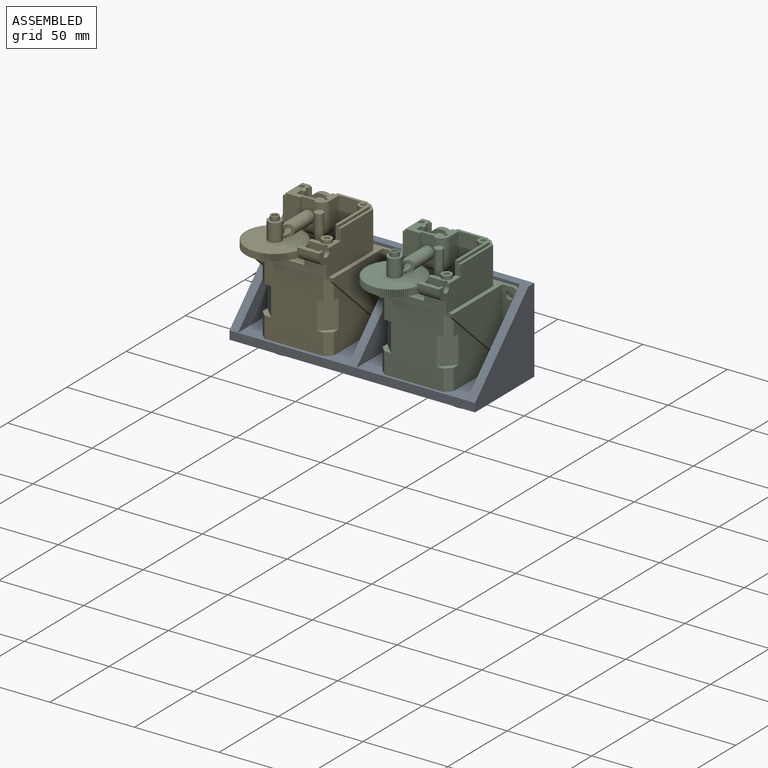
[diagram: assembled view]
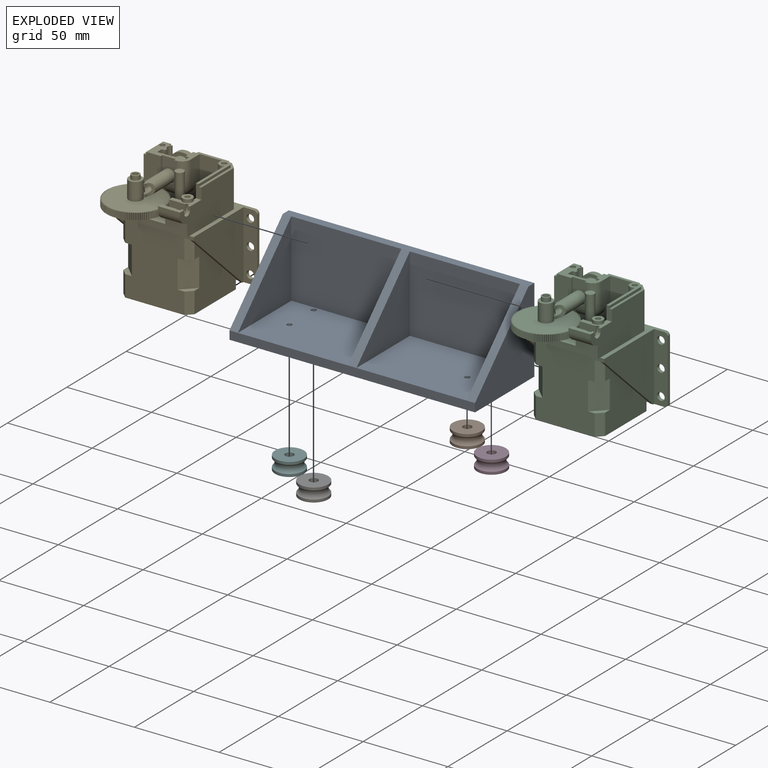
[diagram: exploded view]
GUIDED TOUR — MATED ASSEMBLY WITH SUBASSEMBLIES (Onshape document d7634deb3688b2f1b985ae3a, AutoMate assembly d7634deb3688b2f1b985ae3a_b9d960c2a4b070388d942541_c67b8e5b1b99cf756e7b9374_default)

This assembly has 17 component occurrences arranged in 7 top-level units: 5 individual components plus 2 subassemblies (S0, S1). The tour has two levels: first the top level, where each subassembly is treated as one rigid unit; then each subassembly is toured internally in its own section (nesting deeper than one subassembly level is flattened into its subassembly's section).

Components are labeled P0..P16 across the whole record; subassembly units are labeled S0..S1. A mate is a constraint between two units; its type names the relative motion it leaves free:
  CYLINDRICAL — leaves both rotation about and translation along the listed axis free,
  PARALLEL — keeps the two listed directions parallel,
  PLANAR — leaves sliding in the plane through the listed point (normal = the listed direction) and rotation about that normal free.
Axis/direction vectors are unit vectors and 'through' points are millimeter coordinates, both in the assembly's world frame.

TOP-LEVEL MATES (between units; each subassembly's internal mates are listed in its own section)
  1. CYLINDRICAL "Cylindrical 1": P1 <-> P0, axis (0.000, 0.000, 1.000) through (79.17, -160.97, 48.80) mm
  2. CYLINDRICAL "Cylindrical 4": P16 <-> P0, axis (0.000, 0.000, 1.000) through (-25.83, -140.51, 48.80) mm
  3. PLANAR "Planar 3": P1 <-> P0, direction (0.000, 0.000, 1.000) through (79.17, -160.97, 48.80) mm
  4. CYLINDRICAL "Cylindrical 3": P11 <-> P0, axis (0.000, 0.000, 1.000) through (-25.83, -160.97, 43.92) mm
  5. CYLINDRICAL "Cylindrical 2": P3 <-> P0, axis (0.000, 0.000, 1.000) through (79.17, -140.51, 48.80) mm
  6. PLANAR "Planar 2": P11 <-> P0, direction (0.000, 0.000, 1.000) through (-25.83, -160.97, 48.80) mm
  7. PLANAR "Planar 4": P0 <-> P3, direction (0.000, 0.000, -1.000) through (26.67, -158.09, 48.80) mm
  8. PLANAR "Planar 1": P16 <-> P0, direction (0.000, 0.000, 1.000) through (-25.83, -140.51, 48.80) mm

TOP-LEVEL ASSEMBLY ORDER
  1. P0 — the base component [order heuristic]
  2. P1 — core [order heuristic]
  3. P3 — core [order heuristic]
  4. P11 — core [order heuristic]
  5. P16 — core [order heuristic]
  6. S1 [order verified]
  7. S0 [order verified]
Order-tag legend:
  [order verified] — this step's position reverses a verified removal order: the component was checked to insert without passing through the ones already placed.
  [order heuristic] — the first 5 components form the assembly's core: parts whose collision-free extraction could not be verified, listed in mate-graph order.

Of the 17 component occurrences, 17 carry the full construction recipe — the FeatureScript program that regenerates the part's solid from scratch; the rest are supplied as boundary geometry only. Each toured unit is shown spotlighted twice — assembled, then exploded with a leader line back to its socket (green = recipe-attached component, orange = geometry-only, blue = subassembly unit; the rest desaturated gray).
NOTE — document 4 of 4 of this assembly tour. The two overview renders and the header above are repeated from document 1; the component sections below continue where the previous document stopped.
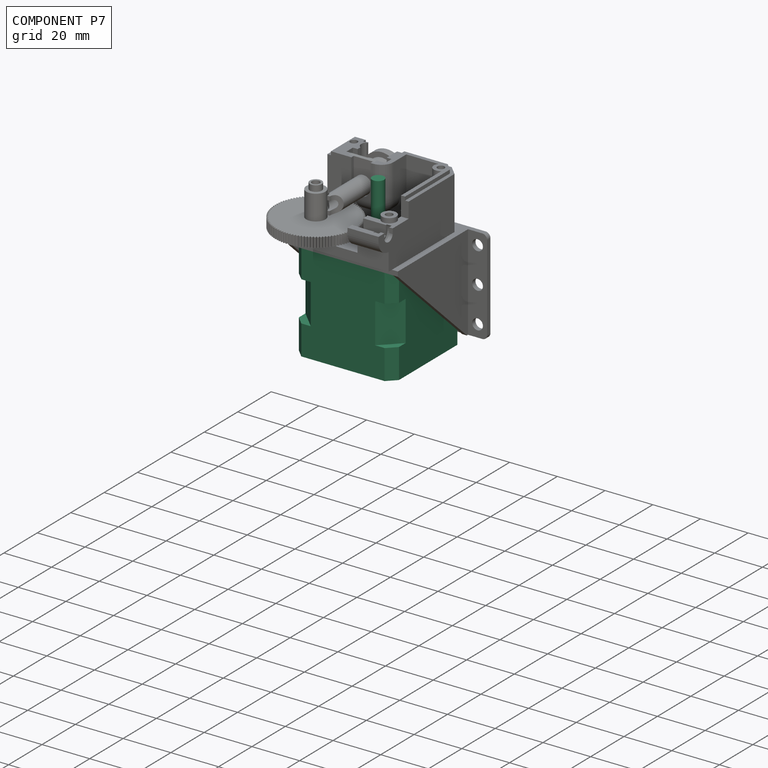
[diagram: component P7 — assembled]
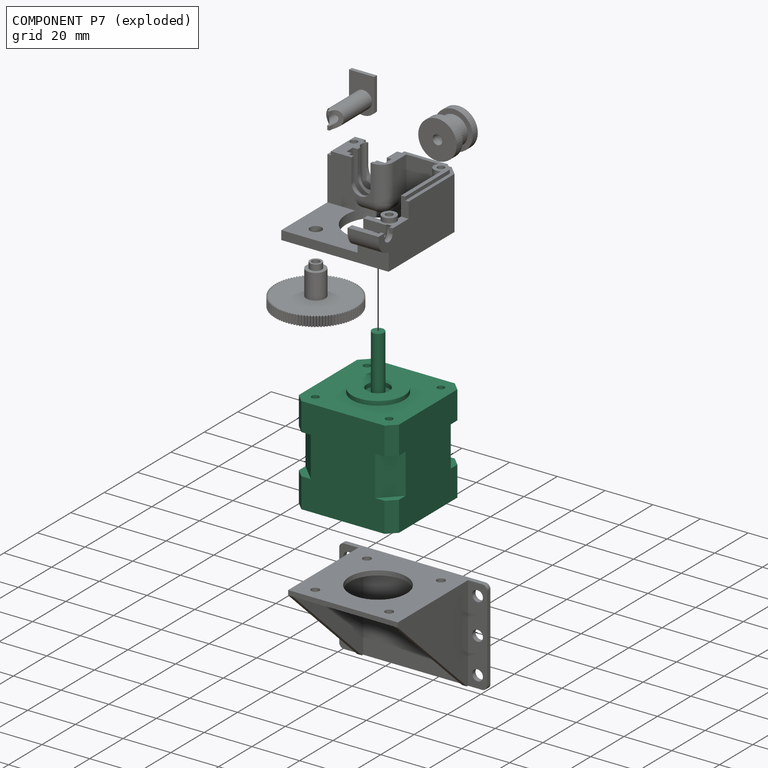
[diagram: component P7 — exploded]
COMPONENT P7 — recipe-attached (CADFS 00519375, mesh-verified: the recipe's output STEP matches this component's geometry to below the mesh-comparison resolution (tessellation chordal tolerance ~0.131 mm)).
Held by: CYLINDRICAL mate "Cylindrical 1" to P5; PARALLEL mate "Parallel 5" to P5; PLANAR mate "Planar 1" to P5; PARALLEL mate "Parallel 2" to P5; PARALLEL mate "Parallel 1" to P5; PARALLEL mate "Parallel 1" to P5; PARALLEL mate "Parallel 5" to P5; PARALLEL mate "Parallel 2" to P5; CYLINDRICAL mate "Cylindrical 1" to P5; PLANAR mate "Planar 1" to P5.
Construction recipe (FeatureScript — the CAD program that rebuilds this solid; sketch coordinates are in the units given by the * unit suffixes, e.g. mm):

FeatureScript 1511;
import(path : "onshape/std/geometry.fs", version : "1511.0");
import(path : "onshape/std/common.fs", version : "1511.0");
const mm = millimeter;
const VERTEX = EntityType.VERTEX;
const EDGE = EntityType.EDGE;
const FACE = EntityType.FACE;
const BODY = EntityType.BODY;
function v(x, y){return vector(x, y);}
function OD(order){return orderDisambiguation(order);}
function OSD(set){return originalSetDisambiguation(set);}
function TD(topology){return topologyDisambiguation(topology);}
function TDD(query){return trueDependencyDisambiguation(query);}
function sQuery(a, b, c) {return sketchEntityQuery(a, b, c);}

annotation { "Feature Type Name" : "Feature", "Feature Type Description" : "" }
export const myFeature = defineFeature(function(context is Context, id is Id, definition is map)
    precondition{}
    {
        {
            var Q0;
            Q0=qCreatedBy(makeId("Top.planeOp"),FACE);
            var sketch = newSketch(context, id + "F0", { "sketchPlane" : qUnion([Q0])});
            skLineSegment(sketch, "E0.bottom", {"start": v(-17.46, 21) * mm, "end": v(17.46, 21) * mm});
            skLineSegment(sketch, "E0.top", {"start": v(-17.46, -21) * mm, "end": v(17.46, -21) * mm});
            skLineSegment(sketch, "E0.left", {"start": v(-21, 17.46) * mm, "end": v(-21, -17.46) * mm});
            skLineSegment(sketch, "E0.right", {"start": v(21, 17.46) * mm, "end": v(21, -17.46) * mm});
            skLineSegment(sketch, "E1", {"start": v(-21, -17.46) * mm, "end": v(-17.46, -21) * mm});
            skLineSegment(sketch, "E2", {"start": v(21, -17.46) * mm, "end": v(17.46, -21) * mm});
            skLineSegment(sketch, "E3", {"start": v(-17.46, 21) * mm, "end": v(-21, 17.46) * mm});
            skLineSegment(sketch, "E4", {"start": v(17.46, 21) * mm, "end": v(21, 17.46) * mm});
            skSolve(sketch);
        }
        {
            var Q0;
            Q0=makeQuery(id+"F0.imprint","IMPRINT",FACE,{"disambiguationData":[TD([[makeQuery(id+"F0.imprint","IMPRINT",EDGE,{"derivedFrom":sQuery(id+"F0.wireOp",EDGE,"E0.bottom")}),-1.0]])]});
            extrude(context, id + "F1", {"entities" : qUnion([Q0]), "depth" : 12.5 * mm, "offsetDistance" : 25 * mm});
        }
        {
            var Q0;
            Q0=makeQuery(id+"F1.opExtrude","CAP_FACE",FACE,{"disambiguationData":[OSD([sQuery(id+"F0.wireOp",EDGE,"E0.bottom"),sQuery(id+"F0.wireOp",EDGE,"E0.top"),sQuery(id+"F0.wireOp",EDGE,"E0.left"),sQuery(id+"F0.wireOp",EDGE,"E0.right"),sQuery(id+"F0.wireOp",EDGE,"E1"),sQuery(id+"F0.wireOp",EDGE,"E2"),sQuery(id+"F0.wireOp",EDGE,"E3"),sQuery(id+"F0.wireOp",EDGE,"E4")])],"isStart":false});
            var sketch = newSketch(context, id + "F2", { "sketchPlane" : qUnion([Q0])});
            skLineSegment(sketch, "E5", {"start": v(-13.5, 21) * mm, "end": v(13.5, 21) * mm});
            skLineSegment(sketch, "E6", {"start": v(13.5, 21) * mm, "end": v(21, 13.5) * mm});
            skLineSegment(sketch, "E7", {"start": v(21, 13.5) * mm, "end": v(21, -13.5) * mm});
            skLineSegment(sketch, "E8", {"start": v(21, -13.5) * mm, "end": v(13.5, -21) * mm});
            skLineSegment(sketch, "E9", {"start": v(13.5, -21) * mm, "end": v(-13.5, -21) * mm});
            skLineSegment(sketch, "E10", {"start": v(-13.5, -21) * mm, "end": v(-21, -13.5) * mm});
            skLineSegment(sketch, "E11", {"start": v(-21, -13.5) * mm, "end": v(-21, 13.5) * mm});
            skLineSegment(sketch, "E12", {"start": v(-21, 13.5) * mm, "end": v(-13.5, 21) * mm});
            skSolve(sketch);
        }
        {
            var Q0;
            Q0 = qSketchRegion(id + "F2", true);
            extrude(context, id + "F3", {"entities" : qUnion([Q0]), "operationType" : NewBodyOperationType.ADD, "depth" : 16.75 * mm, "offsetDistance" : 25 * mm});
        }
        {
            var Q0;
            Q0 = qSketchRegion(id + "F0", true);
            extrude(context, id + "F4", {"entities" : qUnion([Q0]), "operationType" : NewBodyOperationType.ADD, "depth" : 41 * mm, "offsetDistance" : 25 * mm, "hasSecondDirection" : true, "secondDirectionOppositeDirection" : false, "secondDirectionDepth" : 29.25 * mm});
        }
        {
            var Q0;
            Q0=makeQuery(id+"F4.opExtrude","CAP_FACE",FACE,{"disambiguationData":[OSD([sQuery(id+"F0.wireOp",EDGE,"E0.bottom"),sQuery(id+"F0.wireOp",EDGE,"E0.top"),sQuery(id+"F0.wireOp",EDGE,"E0.left"),sQuery(id+"F0.wireOp",EDGE,"E0.right"),sQuery(id+"F0.wireOp",EDGE,"E1"),sQuery(id+"F0.wireOp",EDGE,"E2"),sQuery(id+"F0.wireOp",EDGE,"E3"),sQuery(id+"F0.wireOp",EDGE,"E4")])],"isStart":false});
            var sketch = newSketch(context, id + "F5", { "sketchPlane" : qUnion([Q0])});
            skCircle(sketch, "E13", {"center": v(-15.5, 15.5) * mm, "radius": 1.5 * mm});
            skCircle(sketch, "E14", {"center": v(15.5, 15.5) * mm, "radius": 1.5 * mm});
            skCircle(sketch, "E15", {"center": v(15.5, -15.5) * mm, "radius": 1.5 * mm});
            skCircle(sketch, "E16", {"center": v(-15.5, -15.5) * mm, "radius": 1.5 * mm});
            skSolve(sketch);
        }
        {
            var Q0;
            Q0 = qSketchRegion(id + "F5", true);
            extrude(context, id + "F6", {"entities" : qUnion([Q0]), "operationType" : NewBodyOperationType.REMOVE, "oppositeDirection" : true, "depth" : 5.5 * mm, "offsetDistance" : 25 * mm});
        }
        {
            var Q0;
            Q0=makeQuery(id+"F4.opExtrude","CAP_FACE",FACE,{"disambiguationData":[OSD([sQuery(id+"F0.wireOp",EDGE,"E0.bottom"),sQuery(id+"F0.wireOp",EDGE,"E0.top"),sQuery(id+"F0.wireOp",EDGE,"E0.left"),sQuery(id+"F0.wireOp",EDGE,"E0.right"),sQuery(id+"F0.wireOp",EDGE,"E1"),sQuery(id+"F0.wireOp",EDGE,"E2"),sQuery(id+"F0.wireOp",EDGE,"E3"),sQuery(id+"F0.wireOp",EDGE,"E4")])],"isStart":false});
            var sketch = newSketch(context, id + "F7", { "sketchPlane" : qUnion([Q0])});
            skCircle(sketch, "E17", {"center": v(0, 0) * mm, "radius": 11 * mm});
            skCircle(sketch, "E18", {"center": v(0, 0) * mm, "radius": 4.75 * mm});
            skSolve(sketch);
        }
        {
            var Q0;
            Q0 = qSketchRegion(id + "F7", true);
            extrude(context, id + "F8", {"entities" : qUnion([Q0]), "operationType" : NewBodyOperationType.ADD, "depth" : 1.75 * mm, "offsetDistance" : 25 * mm});
        }
        {
            var Q0;
            Q0=makeQuery(id+"F8.boolean.opBoolean","SPLIT",FACE,{"disambiguationData":[TD([makeQuery(id+"F8.opExtrude","SWEPT_FACE",FACE,{"disambiguationData":[OSD([sQuery(id+"F7.wireOp",EDGE,"E18")])]})])],"derivedFrom":makeQuery(id+"F4.opExtrude","CAP_FACE",FACE,{"disambiguationData":[OSD([sQuery(id+"F0.wireOp",EDGE,"E0.bottom"),sQuery(id+"F0.wireOp",EDGE,"E0.top"),sQuery(id+"F0.wireOp",EDGE,"E0.left"),sQuery(id+"F0.wireOp",EDGE,"E0.right"),sQuery(id+"F0.wireOp",EDGE,"E1"),sQuery(id+"F0.wireOp",EDGE,"E2"),sQuery(id+"F0.wireOp",EDGE,"E3"),sQuery(id+"F0.wireOp",EDGE,"E4")])],"isStart":false})});
            var sketch = newSketch(context, id + "F9", { "sketchPlane" : qUnion([Q0])});
            skCircle(sketch, "E19", {"center": v(0, 0) * mm, "radius": 2.5 * mm});
            skSolve(sketch);
        }
        {
            var Q0;
            Q0 = qSketchRegion(id + "F9", true);
            extrude(context, id + "F10", {"entities" : qUnion([Q0]), "operationType" : NewBodyOperationType.ADD, "depth" : (21.5 + 1.75) * mm, "offsetDistance" : 25 * mm});
        }
    });
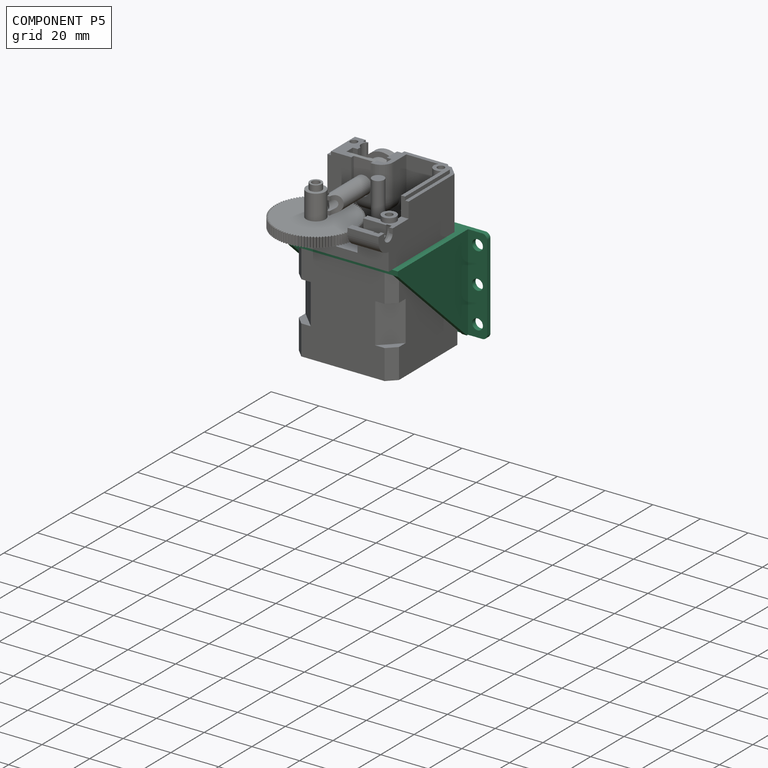
[diagram: component P5 — assembled]
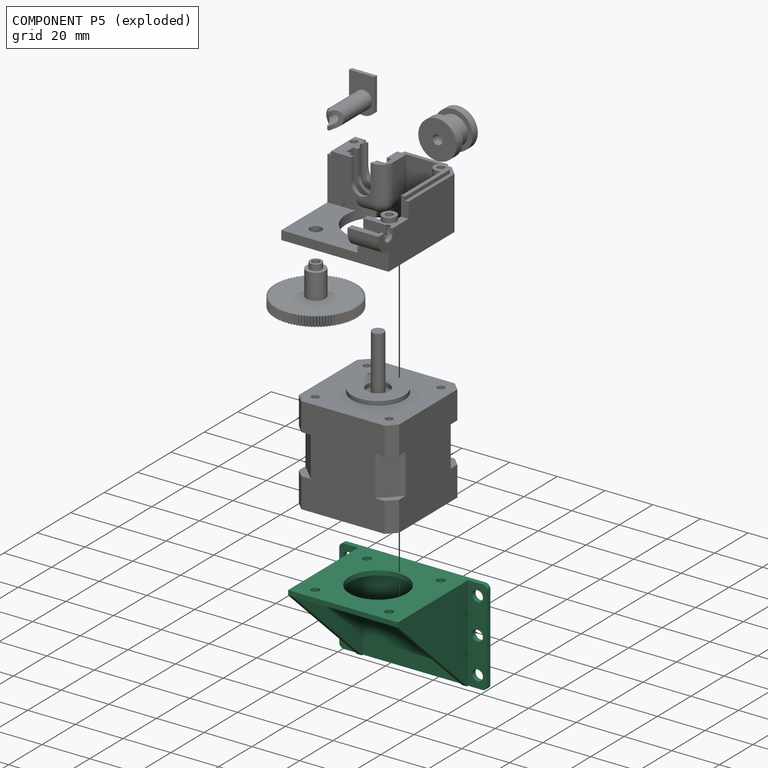
[diagram: component P5 — exploded]
COMPONENT P5 — recipe-attached (CADFS 00519376, mesh-verified: the recipe's output STEP matches this component's geometry to below the mesh-comparison resolution (tessellation chordal tolerance ~0.129 mm)).
Held by: PLANAR mate "Planar 2" to P12; CYLINDRICAL mate "Cylindrical 1" to P7; PARALLEL mate "Parallel 5" to P7; PLANAR mate "Planar 1" to P7; PARALLEL mate "Parallel 2" to P7; CYLINDRICAL mate "Cylindrical 2" to P12; PARALLEL mate "Parallel 1" to P7; PARALLEL mate "Parallel 3" to P12; PLANAR mate "Planar 2" to P12; PARALLEL mate "Parallel 1" to P7; PARALLEL mate "Parallel 5" to P7; PARALLEL mate "Parallel 3" to P12; PARALLEL mate "Parallel 2" to P7; CYLINDRICAL mate "Cylindrical 1" to P7; PLANAR mate "Planar 1" to P7; CYLINDRICAL mate "Cylindrical 2" to P12.
Construction recipe (FeatureScript — the CAD program that rebuilds this solid; sketch coordinates are in the units given by the * unit suffixes, e.g. mm):

FeatureScript 1511;
import(path : "onshape/std/geometry.fs", version : "1511.0");
import(path : "onshape/std/common.fs", version : "1511.0");
const mm = millimeter;
const VERTEX = EntityType.VERTEX;
const EDGE = EntityType.EDGE;
const FACE = EntityType.FACE;
const BODY = EntityType.BODY;
function v(x, y){return vector(x, y);}
function OD(order){return orderDisambiguation(order);}
function OSD(set){return originalSetDisambiguation(set);}
function TD(topology){return topologyDisambiguation(topology);}
function TDD(query){return trueDependencyDisambiguation(query);}
function sQuery(a, b, c) {return sketchEntityQuery(a, b, c);}

annotation { "Feature Type Name" : "Feature", "Feature Type Description" : "" }
export const myFeature = defineFeature(function(context is Context, id is Id, definition is map)
    precondition{}
    {
        {
            var Q0;
            Q0=qCreatedBy(makeId("Top.planeOp"),FACE);
            var sketch = newSketch(context, id + "F0", { "sketchPlane" : qUnion([Q0])});
            skLineSegment(sketch, "E0.bottom", {"start": v(2, 0) * mm, "end": v(60, 0) * mm});
            skLineSegment(sketch, "E0.top", {"start": v(2, 40) * mm, "end": v(60, 40) * mm});
            skLineSegment(sketch, "E0.left", {"start": v(0, 2) * mm, "end": v(0, 38) * mm});
            skLineSegment(sketch, "E0.right", {"start": v(62, 2) * mm, "end": v(62, 38) * mm});
            skCircle(sketch, "E1", {"center": v(4, 35) * mm, "radius": 2.25 * mm});
            skCircle(sketch, "E2", {"center": v(4, 20) * mm, "radius": 2.25 * mm});
            skCircle(sketch, "E3", {"center": v(4, 5) * mm, "radius": 2.25 * mm});
            skCircle(sketch, "E4", {"center": v(58, 35) * mm, "radius": 2.25 * mm});
            skCircle(sketch, "E5", {"center": v(58, 20) * mm, "radius": 2.25 * mm});
            skCircle(sketch, "E6", {"center": v(58, 5) * mm, "radius": 2.25 * mm});
            skPoint(sketch, "E7.visualSharp", {"position": v(0, 40) * mm});
            skArc(sketch, "E7.filletArc", {"start": v(2, 40) * mm, "mid": v(0.59, 39.41) * mm, "end": v(0, 38) * mm});
            skPoint(sketch, "E8.visualSharp", {"position": v(0, 0) * mm});
            skArc(sketch, "E8.filletArc", {"start": v(0, 2) * mm, "mid": v(0.59, 0.59) * mm, "end": v(2, 0) * mm});
            skPoint(sketch, "E9.visualSharp", {"position": v(62, 40) * mm});
            skArc(sketch, "E9.filletArc", {"start": v(62, 38) * mm, "mid": v(61.41, 39.41) * mm, "end": v(60, 40) * mm});
            skPoint(sketch, "E10.visualSharp", {"position": v(62, 0) * mm});
            skArc(sketch, "E10.filletArc", {"start": v(60, 0) * mm, "mid": v(61.41, 0.59) * mm, "end": v(62, 2) * mm});
            skSolve(sketch);
        }
        {
            var Q0;
            Q0 = qSketchRegion(id + "F0", true);
            extrude(context, id + "F1", {"entities" : qUnion([Q0]), "depth" : 2 * mm, "offsetDistance" : 25 * mm});
        }
        {
            var Q0;
            Q0=qCreatedBy(makeId("Front.planeOp"),FACE);
            var sketch = newSketch(context, id + "F2", { "sketchPlane" : qUnion([Q0])});
            skLineSegment(sketch, "E11.bottom", {"start": v(8, 0) * mm, "end": v(54, 0) * mm});
            skLineSegment(sketch, "E11.top", {"start": v(8, 44) * mm, "end": v(54, 44) * mm});
            skLineSegment(sketch, "E11.left", {"start": v(8, 0) * mm, "end": v(8, 44) * mm});
            skLineSegment(sketch, "E11.right", {"start": v(54, 0) * mm, "end": v(54, 44) * mm});
            skCircle(sketch, "E12", {"center": v(31, 23) * mm, "radius": 12 * mm});
            skCircle(sketch, "E13", {"center": v(15.5, 38.5) * mm, "radius": 1.7 * mm});
            skCircle(sketch, "E14", {"center": v(15.5, 7.5) * mm, "radius": 1.7 * mm});
            skCircle(sketch, "E15", {"center": v(46.5, 38.5) * mm, "radius": 1.7 * mm});
            skCircle(sketch, "E16", {"center": v(46.5, 7.5) * mm, "radius": 1.7 * mm});
            skSolve(sketch);
        }
        {
            var Q0;
            Q0 = qSketchRegion(id + "F2", true);
            extrude(context, id + "F3", {"entities" : qUnion([Q0]), "operationType" : NewBodyOperationType.ADD, "oppositeDirection" : true, "depth" : 2 * mm, "offsetDistance" : 25 * mm});
        }
        {
            var Q0;
            Q0=makeQuery(id+"F3.opExtrude","SWEPT_FACE",FACE,{"disambiguationData":[OSD([sQuery(id+"F2.wireOp",EDGE,"E11.left")])]});
            var sketch = newSketch(context, id + "F4", { "sketchPlane" : qUnion([Q0])});
            skLineSegment(sketch, "E17", {"start": v(-2, 44) * mm, "end": v(-40, 2.7) * mm});
            skLineSegment(sketch, "E18", {"start": v(-40, 2.7) * mm, "end": v(-40, 0) * mm});
            skLineSegment(sketch, "E19", {"start": v(-40, 0) * mm, "end": v(0, 0) * mm});
            skLineSegment(sketch, "E20", {"start": v(0, 0) * mm, "end": v(0, 44) * mm});
            skLineSegment(sketch, "E21", {"start": v(0, 44) * mm, "end": v(-2, 44) * mm});
            skSolve(sketch);
        }
        {
            var Q0;
            Q0 = qSketchRegion(id + "F4", true);
            extrude(context, id + "F5", {"entities" : qUnion([Q0]), "operationType" : NewBodyOperationType.ADD, "oppositeDirection" : true, "depth" : 2 * mm, "offsetDistance" : 25 * mm});
        }
        {
            var Q0;
            Q0 = qSketchRegion(id + "F4", true);
            extrude(context, id + "F6", {"entities" : qUnion([Q0]), "operationType" : NewBodyOperationType.ADD, "oppositeDirection" : true, "depth" : 46 * mm, "offsetDistance" : 25 * mm, "hasSecondDirection" : true, "secondDirectionOppositeDirection" : true, "secondDirectionDepth" : 44 * mm});
        }
    });
PROVENANCE & LICENSES
Assembly (occurrences, transforms, mates, per-part STEP geometry): AutoMate dataset, Zenodo record 7776208, CC0.
Construction recipes: CADFS (HuggingFace VladPyatov/CADFS, CC-BY-4.0, layered over the ABC dataset), FeatureScript reconstruction programs keyed by ABC model id.
Join: ABC meta listings map ABC model id -> Onshape documentId; within a shared document, parts are matched by geometric signature (bounding-box dims + volume at 0.1% relative tolerance, exact B-rep face/solid counts).
Verification: 17 of this assembly's 17 components carry a recipe attachment, and every attachment is mesh-verified: the CADFS STEP and the AutoMate member STEP were compared as meshes in their shared local frame (symmetric sampled-point-to-mesh distance); worst across the 17 attachments: below the mesh-comparison resolution (tessellation chordal tolerance ~0.249 mm) on a 166 mm part.
Renders: orthographic iso camera (az 35 / el 25); the floor grid conveys scale (grid pitch printed in each image; no ruler). In the exploded view each component is displaced by its stored offset vector: the offsets alone carry the explosion direction (mate normal/axis signs are not orientation cues and do not encode it), and separation distances are assigned per mate-chain, not proportionally to assembly-order depth.
